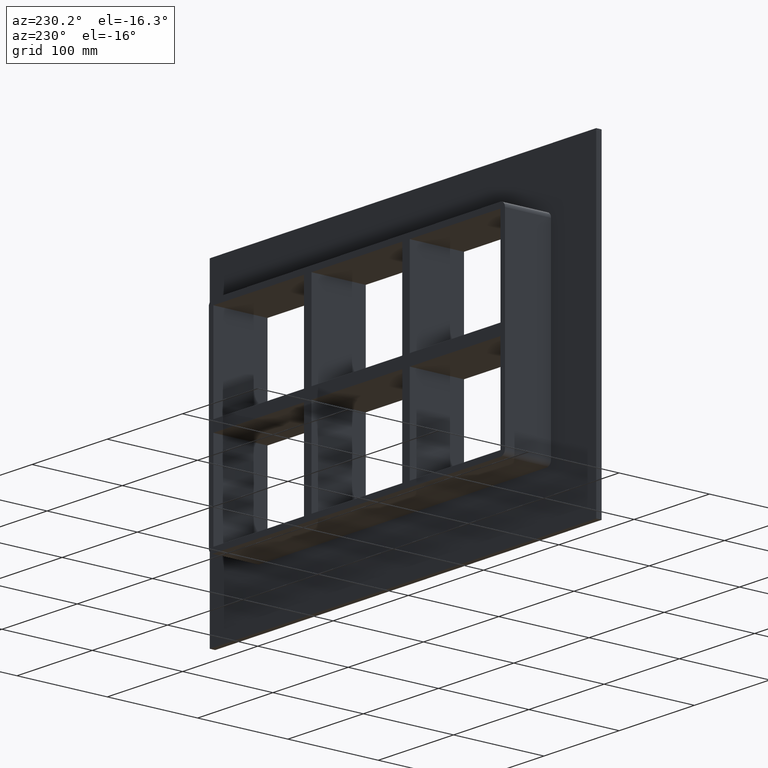
[diagram: clean part render]
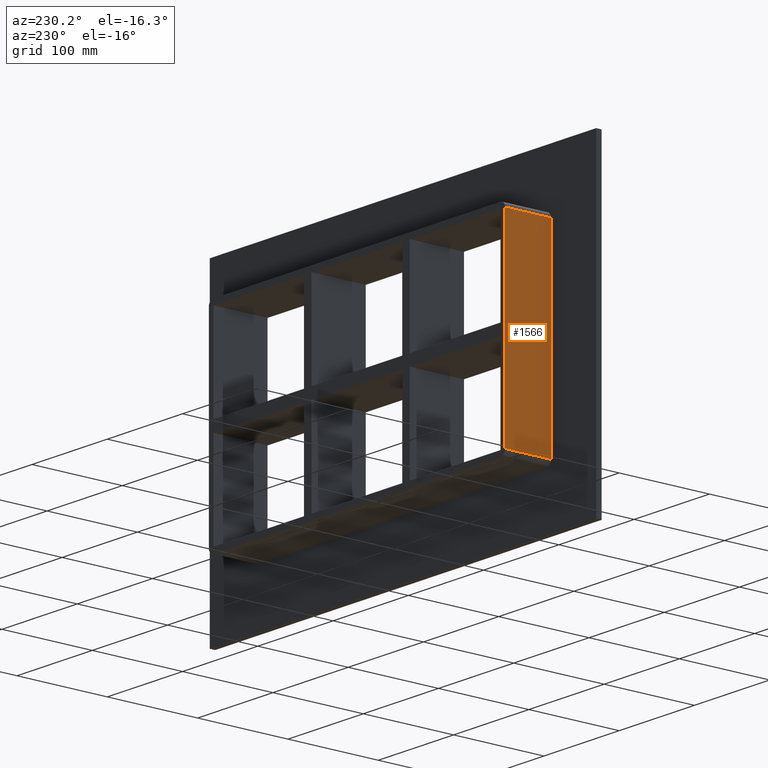
[diagram: same view with one face highlighted and labeled with its STEP entity id]
A machine part, auxiliary view. The second image highlights one B-rep face of the part: STEP entity #1566.
In plain terms, the highlighted planar face has unit normal (-1, 0, 0).
Its self-contained STEP definition (entity closure, byte-faithful):
#808=CARTESIAN_POINT('',(-196.75000000000006,57.0,-107.0));
#809=VERTEX_POINT('',#808);
#817=CARTESIAN_POINT('',(-196.75000000000006,57.0,107.0));
#818=VERTEX_POINT('',#817);
#819=CARTESIAN_POINT('',(-196.75000000000006,57.0,-106.99999999999999));
#820=DIRECTION('',(0.0,0.0,1.0));
#821=VECTOR('',#820,214.0);
#822=LINE('',#819,#821);
#823=EDGE_CURVE('',#809,#818,#822,.T.);
#1065=CARTESIAN_POINT('',(-196.75000000000006,6.000000000000001,-107.0));
#1066=VERTEX_POINT('',#1065);
#1116=CARTESIAN_POINT('',(-196.75000000000006,6.000000000000001,107.0));
#1117=VERTEX_POINT('',#1116);
#1125=CARTESIAN_POINT('',(-196.75000000000006,6.000000000000001,-107.0));
#1126=DIRECTION('',(0.0,0.0,1.0));
#1127=VECTOR('',#1126,213.99999999999997);
#1128=LINE('',#1125,#1127);
#1129=EDGE_CURVE('',#1066,#1117,#1128,.T.);
#1539=CARTESIAN_POINT('',(-196.75000000000006,6.000000000000001,-107.0));
#1540=DIRECTION('',(0.0,1.0,0.0));
#1541=VECTOR('',#1540,51.0);
#1542=LINE('',#1539,#1541);
#1543=EDGE_CURVE('',#1066,#809,#1542,.T.);
#1550=CARTESIAN_POINT('',(-196.75000000000006,0.0,-113.0));
#1551=DIRECTION('',(-1.0,0.0,0.0));
#1552=DIRECTION('',(0.0,0.0,1.0));
#1553=AXIS2_PLACEMENT_3D('',#1550,#1551,#1552);
#1554=PLANE('',#1553);
#1555=ORIENTED_EDGE('',*,*,#1129,.T.);
#1556=CARTESIAN_POINT('',(-196.75000000000006,57.0,107.0));
#1557=DIRECTION('',(0.0,-1.0,0.0));
#1558=VECTOR('',#1557,51.0);
#1559=LINE('',#1556,#1558);
#1560=EDGE_CURVE('',#818,#1117,#1559,.T.);
#1561=ORIENTED_EDGE('',*,*,#1560,.F.);
#1562=ORIENTED_EDGE('',*,*,#823,.F.);
#1563=ORIENTED_EDGE('',*,*,#1543,.F.);
#1564=EDGE_LOOP('',(#1555,#1561,#1562,#1563));
#1565=FACE_OUTER_BOUND('',#1564,.T.);
#1566=ADVANCED_FACE('',(#1565),#1554,.T.);